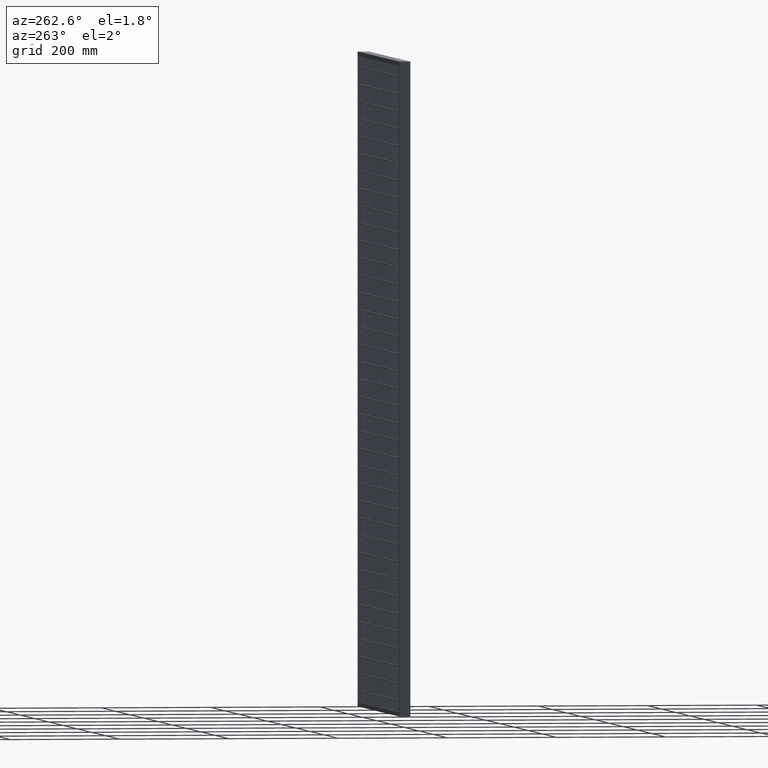
[diagram: clean part render]
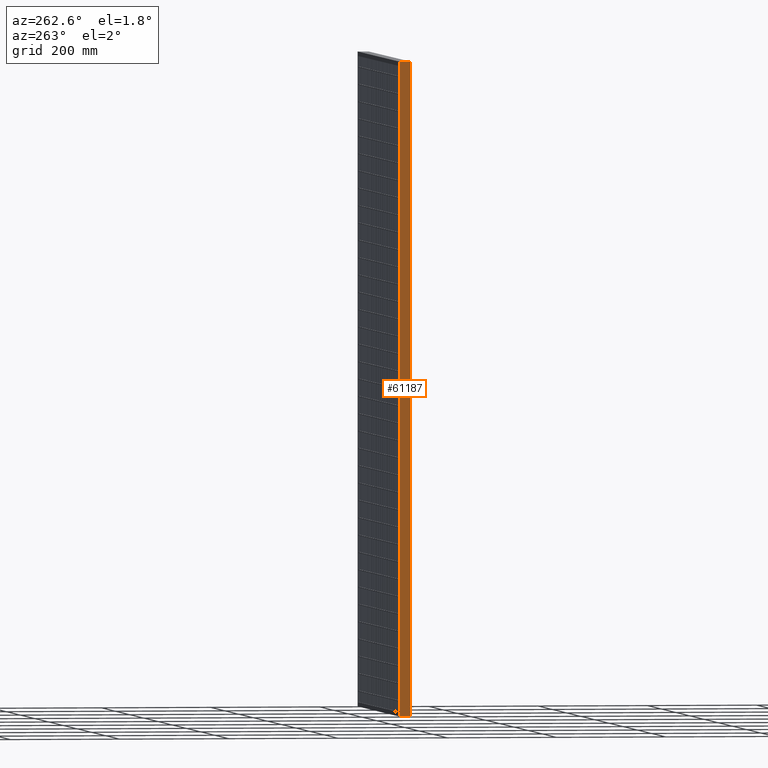
[diagram: same view with one face highlighted and labeled with its STEP entity id]
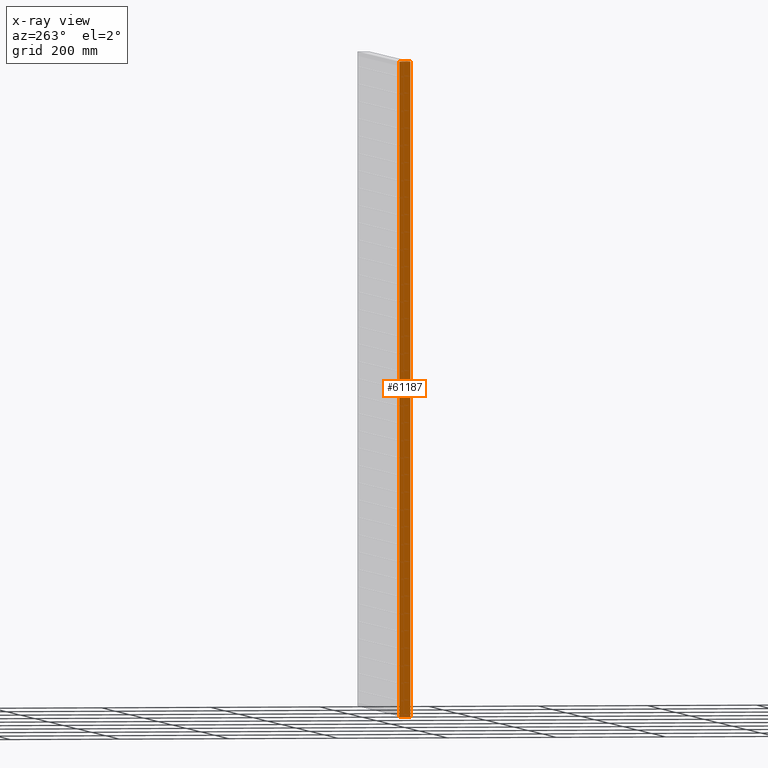
[diagram: x-ray of the same camera — body ghosted, the highlighted face saturated]
A machine part, auxiliary view. The second image highlights one B-rep face of the part: STEP entity #61187.
The next image is the same camera in x-ray: the body ghosted, the highlighted face saturated — about 0% of this face is hidden behind the body in this view.
In plain terms, the highlighted planar face has unit normal (-1, -0, 0).
Its self-contained STEP definition (entity closure, byte-faithful):
#2899 = CARTESIAN_POINT ( 'NONE',  ( 3.061616997868383000E-015, -10.00000000000000000, -1190.000000000000000 ) ) ;
#4143 = ORIENTED_EDGE ( 'NONE', *, *, #48138, .T. ) ;
#5011 = DIRECTION ( 'NONE',  ( -1.000000000000000000, -3.061616997868382200E-016, 0.0000000000000000000 ) ) ;
#5342 = LINE ( 'NONE', #53850, #57962 ) ;
#5483 = EDGE_CURVE ( 'NONE', #96698, #31801, #98954, .T. ) ;
#12147 = LINE ( 'NONE', #44204, #73526 ) ;
#22631 = CARTESIAN_POINT ( 'NONE',  ( -1.110223024625158800E-013, 10.00000000000000200, 1.674300991843619100E-014 ) ) ;
#25610 = EDGE_CURVE ( 'NONE', #89113, #31801, #5342, .T. ) ;
#25910 = ORIENTED_EDGE ( 'NONE', *, *, #25610, .F. ) ;
#31801 = VERTEX_POINT ( 'NONE', #22631 ) ;
#35267 = CARTESIAN_POINT ( 'NONE',  ( 1.020538999289460800E-015, -3.333333333333332100, 0.0000000000000000000 ) ) ;
#44204 = CARTESIAN_POINT ( 'NONE',  ( 3.061616997868383000E-015, -10.00000000000000000, -1233.081318457076100 ) ) ;
#46288 = ORIENTED_EDGE ( 'NONE', *, *, #5483, .T. ) ;
#48138 = EDGE_CURVE ( 'NONE', #89113, #74837, #71962, .T. ) ;
#52619 = CARTESIAN_POINT ( 'NONE',  ( -3.061616997868382300E-015, 10.00000000000000000, -1233.081318457076100 ) ) ;
#52992 = CARTESIAN_POINT ( 'NONE',  ( -3.061616997868386200E-015, 10.00000000000001400, -1190.000000000000000 ) ) ;
#53409 = FACE_OUTER_BOUND ( 'NONE', #79117, .T. ) ;
#53525 = AXIS2_PLACEMENT_3D ( 'NONE', #52619, #5011, #77105 ) ;
#53850 = CARTESIAN_POINT ( 'NONE',  ( -3.061616997868382300E-015, 10.00000000000000000, -1233.081318457076100 ) ) ;
#53889 = CARTESIAN_POINT ( 'NONE',  ( 1.530808498934191500E-015, -10.00000000000000000, -3.330669073875469600E-013 ) ) ;
#57941 = CARTESIAN_POINT ( 'NONE',  ( 1.530808498934191500E-015, -10.00000000000000000, -3.330669073875469600E-013 ) ) ;
#57962 = VECTOR ( 'NONE', #60491, 1000.000000000000000 ) ;
#60491 = DIRECTION ( 'NONE',  ( -0.0000000000000000000, -0.0000000000000000000, 1.000000000000000000 ) ) ;
#61187 = ADVANCED_FACE ( 'NONE', ( #53409 ), #85847, .T. ) ;
#68747 = EDGE_CURVE ( 'NONE', #74837, #96698, #12147, .T. ) ;
#71962 = LINE ( 'NONE', #52992, #100884 ) ;
#73526 = VECTOR ( 'NONE', #98859, 1000.000000000000000 ) ;
#74837 = VERTEX_POINT ( 'NONE', #2899 ) ;
#77105 = DIRECTION ( 'NONE',  ( 3.061616997868382200E-016, -1.000000000000000000, 0.0000000000000000000 ) ) ;
#79117 = EDGE_LOOP ( 'NONE', ( #96671, #46288, #25910, #4143 ) ) ;
#82775 = CARTESIAN_POINT ( 'NONE',  ( -1.110223024625158800E-013, 10.00000000000000200, 1.674300991843619100E-014 ) ) ;
#85847 = PLANE ( 'NONE',  #53525 ) ;
#85867 = DIRECTION ( 'NONE',  ( 3.061616997868382200E-016, -1.000000000000000000, 3.061616997868382200E-016 ) ) ;
#86175 = CARTESIAN_POINT ( 'NONE',  ( -3.061616997868381900E-015, 10.00000000000000000, -1190.000000000000000 ) ) ;
#89113 = VERTEX_POINT ( 'NONE', #86175 ) ;
#90528 = CARTESIAN_POINT ( 'NONE',  ( -1.020538999289461100E-015, 3.333333333333333900, 0.0000000000000000000 ) ) ;
#96671 = ORIENTED_EDGE ( 'NONE', *, *, #68747, .T. ) ;
#96698 = VERTEX_POINT ( 'NONE', #53889 ) ;
#98859 = DIRECTION ( 'NONE',  ( -0.0000000000000000000, -0.0000000000000000000, 1.000000000000000000 ) ) ;
#98954 = B_SPLINE_CURVE_WITH_KNOTS ( 'NONE', 3,
 ( #57941, #35267, #90528, #82775 ),
 .UNSPECIFIED., .F., .F.,
 ( 4, 4 ),
 ( 0.0000000000000000000, 1.000000000000000000 ),
 .UNSPECIFIED. ) ;
#100884 = VECTOR ( 'NONE', #85867, 1000.000000000000000 ) ;